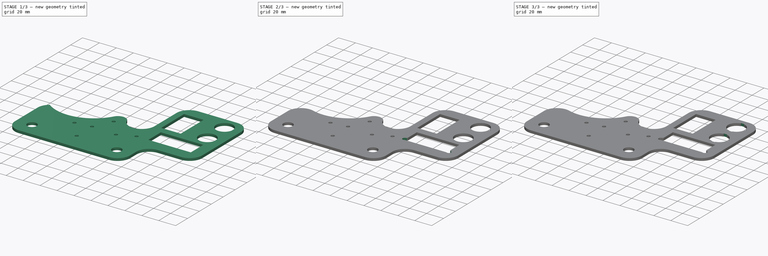
[diagram: build sequence overview — one tinted view per stage of 3, left to right]
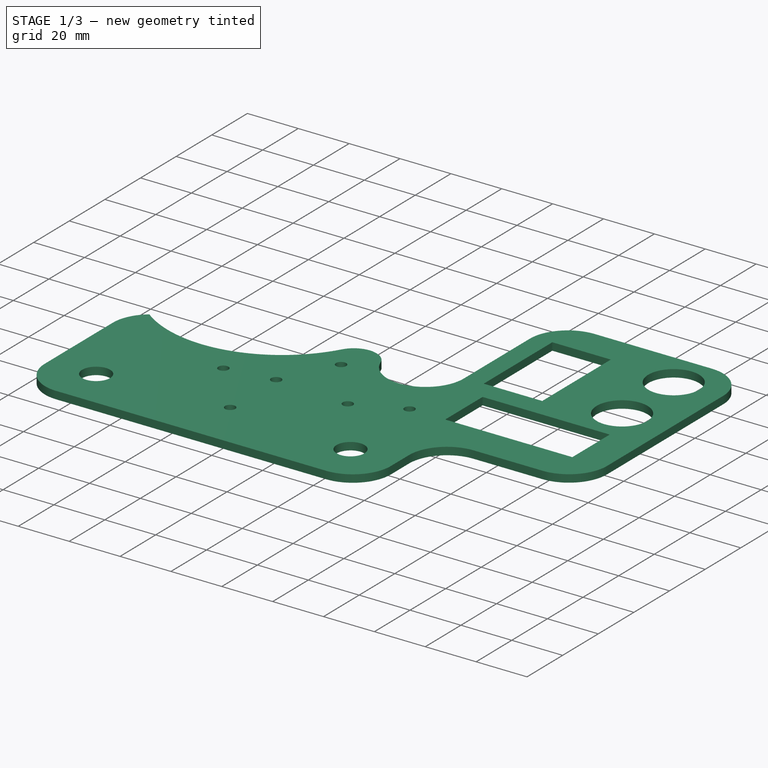
[diagram: stage 1 of 3 — iso view after this stage's code; geometry added in this stage tinted green]
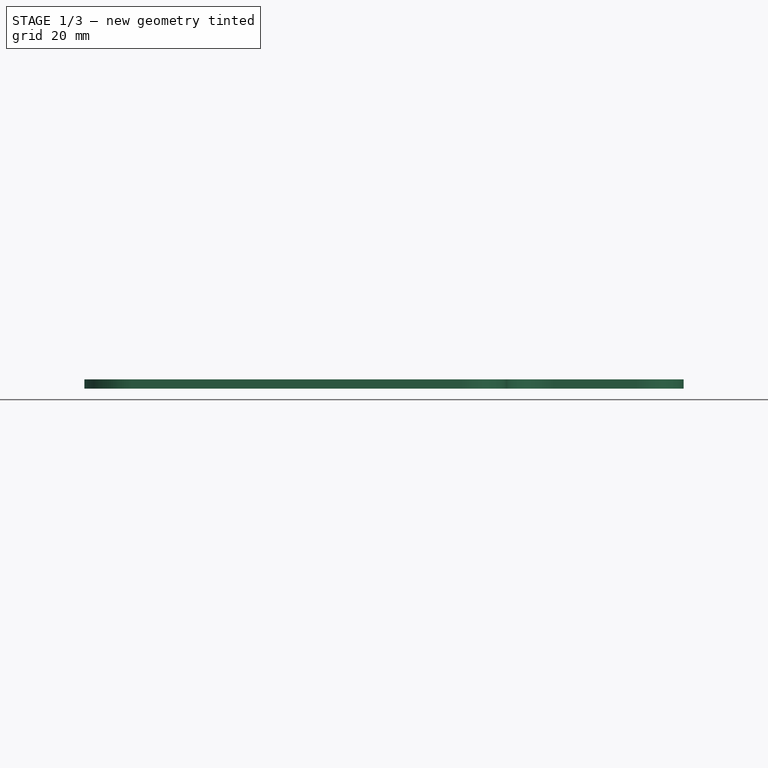
[diagram: stage 1 of 3 — front view after this stage's code; geometry added in this stage tinted green]
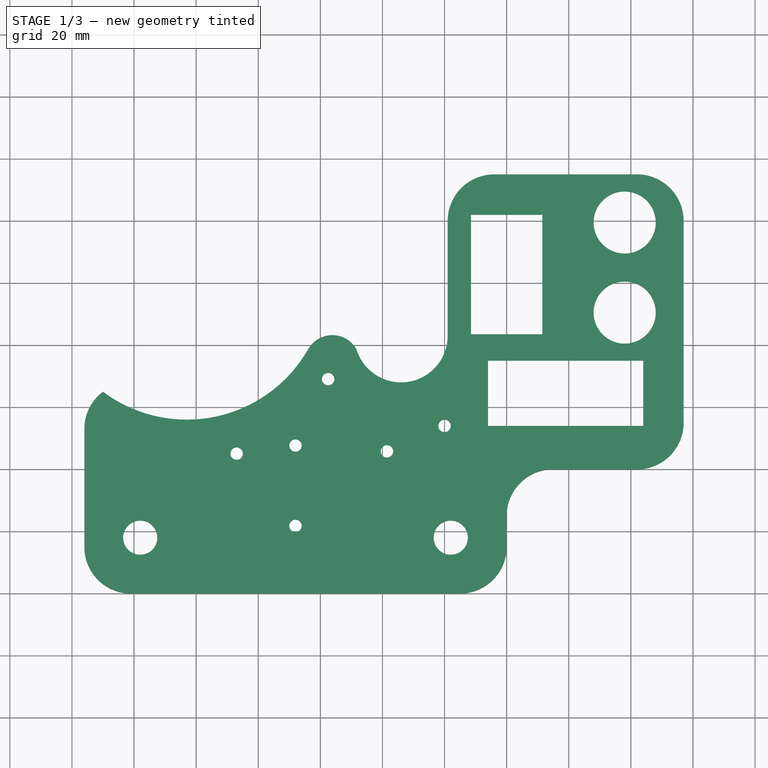
[diagram: stage 1 of 3 — top view after this stage's code; geometry added in this stage tinted green]
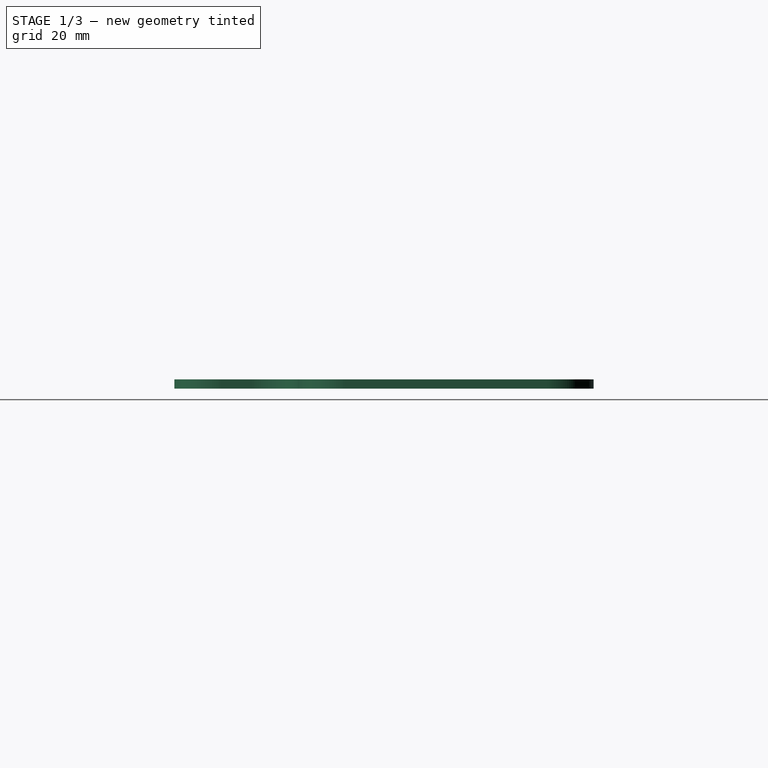
[diagram: stage 1 of 3 — right view after this stage's code; geometry added in this stage tinted green]
FCSTD DOCUMENT  (FreeCAD 1.0R39285 (Git))
Label: dash-bracket
License: All rights reserved
LicenseURL: https://en.wikipedia.org/wiki/All_rights_reserved
objects: PartDesign::Fillet×4, Sketcher::SketchObject×3, PartDesign::Pocket×2, Spreadsheet::Sheet×1, PartDesign::Pad×1, PartDesign::Body×1, TechDraw::DrawSVGTemplate×1, TechDraw::DrawProjGroupItem×1, TechDraw::DrawPage×1
note: 28 computed .brp shape members not serialized (recipe doc carries the construction recipe); baked Part::Feature solids carry a one-line shape summary decoded from their .brp

FEATURE [Sketcher::SketchObject] Sketch
  ArcFitTolerance = 1e-06
  AttachmentSupport = -> [XY_Plane]
  FullyConstrained = true
  MakeInternals = false
  MapMode = 5
  expr: Constraints[10] = <<Spreadsheet>>.speedo_displacement_y
  expr: Constraints[112] = Spreadsheet.amps_dist
  expr: Constraints[115] = <<Spreadsheet>>.bolt_to_amps
  expr: Constraints[119] = 30
  expr: Constraints[124] = <<Spreadsheet>>.bottom_cube_height + 15
  expr: Constraints[125] = <<Spreadsheet>>.top_cube_width - <<Spreadsheet>>.top_cube_x_offset + 15
  expr: Constraints[15] = <<Spreadsheet>>.speedo_displacement_x
  expr: Constraints[16] = <<Spreadsheet>>.bolt_diam
  expr: Constraints[173] = <<Spreadsheet>>.amps_dist
  expr: Constraints[21] = <<Spreadsheet>>.fillet_r
  expr: Constraints[32] = <<Spreadsheet>>.bolt_radius
  expr: Constraints[36] = <<Spreadsheet>>.top_cube_height
  expr: Constraints[37] = <<Spreadsheet>>.top_cube_x_offset
  expr: Constraints[38] = <<Spreadsheet>>.top_cube_y_offset
  expr: Constraints[41] = <<Spreadsheet>>.top_cube_width
  expr: Constraints[42] = <<Spreadsheet>>.bottom_cube_height
  expr: Constraints[5] = <<Spreadsheet>>.bottom_cube_width
  expr: Constraints[6] = <<Spreadsheet>>.speedo_diam
  expr: Constraints[73] = <<Spreadsheet>>.toggle_circle
  expr: Constraints[74] = <<Spreadsheet>>.switches_center_to_center_dist
  expr: Constraints[77] = <<Spreadsheet>>.switches_y_offset
  expr: Constraints[78] = <<Spreadsheet>>.usb_square_x
  expr: Constraints[79] = <<Spreadsheet>>.usb_square_y
  expr: Constraints[80] = <<Spreadsheet>>.indicator_square_x
  expr: Constraints[81] = <<Spreadsheet>>.indicator_square_y
  expr: Constraints[86] = <<Spreadsheet>>.switches_gap_to_right_side
  expr: Constraints[87] = <<Spreadsheet>>.indicator_y_offset
  expr: Constraints[91] = <<Spreadsheet>>.usb_y_offset
  expr: Constraints[92] = <<Spreadsheet>>.usb_x_offset
  expr: Constraints[96] = 4
  expr: Constraints[9] = <<Spreadsheet>>.bolt_dist
  sketch-geometry (71):
    g0: LineSegment StartX=0 StartY=15 StartZ=0 EndX=0 EndY=25 EndZ=0
    g1: LineSegment [constr] StartX=-34 StartY=68 StartZ=0 EndX=-121 EndY=68 EndZ=0
    g2: LineSegment StartX=-136 StartY=53 StartZ=0 EndX=-136 EndY=15 EndZ=0
    g3: LineSegment StartX=-121 StartY=0 StartZ=0 EndX=-15 EndY=0 EndZ=0
    g4: Circle [constr] CenterX=-103 CenterY=101 CenterZ=0 NormalX=0 NormalY=0 NormalZ=1 AngleXU=0 Radius=45
    g5: Circle CenterX=-118 CenterY=18 CenterZ=0 NormalX=0 NormalY=0 NormalZ=1 AngleXU=0 Radius=5.5
    g6: Circle CenterX=-18 CenterY=18 CenterZ=0 NormalX=0 NormalY=0 NormalZ=1 AngleXU=0 Radius=5.5
    g7: GeomPoint [constr] X=-68 Y=18 Z=0
    g8: LineSegment [constr] StartX=-68 StartY=18 StartZ=0 EndX=-68 EndY=0 EndZ=0
    g9: ArcOfCircle [constr] CenterX=-121 CenterY=53 CenterZ=0 NormalX=0 NormalY=0 NormalZ=1 AngleXU=0 Radius=15 StartAngle=1.5708 EndAngle=3.14159
    g10: GeomPoint [constr] X=-136 Y=68 Z=0
    g11: ArcOfCircle CenterX=-121 CenterY=15 CenterZ=0 NormalX=0 NormalY=0 NormalZ=1 AngleXU=0 Radius=15 StartAngle=3.14159 EndAngle=4.71239
    g12: GeomPoint [constr] X=-136 Y=0 Z=0
    g13: ArcOfCircle CenterX=-15 CenterY=15 CenterZ=0 NormalX=0 NormalY=0 NormalZ=1 AngleXU=0 Radius=15 StartAngle=4.71239 EndAngle=6.28319
    g14: GeomPoint [constr] X=0 Y=0 Z=0
    g15: LineSegment StartX=15 StartY=40 StartZ=0 EndX=42 EndY=40 EndZ=0
    g16: LineSegment StartX=57 StartY=55 StartZ=0 EndX=57 EndY=120 EndZ=0
    g17: LineSegment StartX=42 StartY=135 StartZ=0 EndX=-4 EndY=135 EndZ=0
    g18: ArcOfCircle CenterX=15 CenterY=25 CenterZ=0 NormalX=0 NormalY=0 NormalZ=1 AngleXU=0 Radius=15 StartAngle=1.5708 EndAngle=3.14159
    g19: ArcOfCircle CenterX=-4 CenterY=120 CenterZ=0 NormalX=0 NormalY=0 NormalZ=1 AngleXU=0 Radius=15 StartAngle=1.5708 EndAngle=3.14159
    g20: GeomPoint [constr] X=-19 Y=135 Z=0
    g21: ArcOfCircle CenterX=42 CenterY=55 CenterZ=0 NormalX=0 NormalY=0 NormalZ=1 AngleXU=0 Radius=15 StartAngle=4.71239 EndAngle=6.28319
    g22: GeomPoint [constr] X=57 Y=40 Z=0
    g23: ArcOfCircle CenterX=42 CenterY=120 CenterZ=0 NormalX=0 NormalY=0 NormalZ=1 AngleXU=0 Radius=15 StartAngle=0 EndAngle=1.5708
    g24: GeomPoint [constr] X=57 Y=135 Z=0
    g25: LineSegment StartX=-6 StartY=75 StartZ=0 EndX=-6 EndY=54 EndZ=0
    g26: LineSegment StartX=-6 StartY=54 StartZ=0 EndX=44 EndY=54 EndZ=0
    g27: LineSegment StartX=44 StartY=54 StartZ=0 EndX=44 EndY=75 EndZ=0
    g28: LineSegment StartX=44 StartY=75 StartZ=0 EndX=-6 EndY=75 EndZ=0
    g29: LineSegment StartX=-11.5 StartY=122 StartZ=0 EndX=-11.5 EndY=83.5 EndZ=0
    g30: LineSegment StartX=-11.5 StartY=83.5 StartZ=0 EndX=11.5 EndY=83.5 EndZ=0
    g31: LineSegment StartX=11.5 StartY=83.5 StartZ=0 EndX=11.5 EndY=122 EndZ=0
    g32: LineSegment StartX=11.5 StartY=122 StartZ=0 EndX=-11.5 EndY=122 EndZ=0
    g33: Circle CenterX=38 CenterY=119.5 CenterZ=0 NormalX=0 NormalY=0 NormalZ=1 AngleXU=0 Radius=10
    g34: Circle CenterX=38 CenterY=90.5 CenterZ=0 NormalX=0 NormalY=0 NormalZ=1 AngleXU=0 Radius=10
    g35: GeomPoint [constr] X=38 Y=105 Z=0
    g36: LineSegment [constr] StartX=48 StartY=119.5 StartZ=0 EndX=57 EndY=119.5 EndZ=0
    g37: GeomPoint [constr] X=19 Y=135 Z=0
    g38: GeomPoint [constr] X=19 Y=64.5 Z=0
    g39: Circle CenterX=-86.9447 CenterY=45.0777 CenterZ=0 NormalX=0 NormalY=0 NormalZ=1 AngleXU=0 Radius=2
    g40: Circle CenterX=-57.4801 CenterY=69.0743 CenterZ=0 NormalX=0 NormalY=0 NormalZ=1 AngleXU=0 Radius=2
    g41: Circle CenterX=-38.5354 CenterY=45.8128 CenterZ=0 NormalX=0 NormalY=0 NormalZ=1 AngleXU=0 Radius=2
    g42: Circle CenterX=-68 CenterY=21.8162 CenterZ=0 NormalX=0 NormalY=0 NormalZ=1 AngleXU=0 Radius=2
    g43: LineSegment [constr] StartX=-86.9447 StartY=45.0777 StartZ=0 EndX=-68 EndY=21.8162 EndZ=0
    g44: LineSegment [constr] StartX=-57.4801 StartY=69.0743 StartZ=0 EndX=-86.9447 EndY=45.0777 EndZ=0
    g45: LineSegment [constr] StartX=-68 StartY=21.8162 StartZ=0 EndX=-38.5354 EndY=45.8128 EndZ=0
    g46: LineSegment [constr] StartX=-38.5354 StartY=45.8128 StartZ=0 EndX=-57.4801 EndY=69.0743 EndZ=0
    g47: GeomPoint [constr] X=-62.74 Y=45.4453 Z=0
    g48: Circle [constr] CenterX=-92.2074 CenterY=38 CenterZ=0 NormalX=0 NormalY=0 NormalZ=1 AngleXU=0 Radius=2
    g49: Circle [constr] CenterX=-43.7926 CenterY=38 CenterZ=0 NormalX=0 NormalY=0 NormalZ=1 AngleXU=0 Radius=2
    g50: GeomPoint [constr] X=-68 Y=38 Z=0
    g51: ArcOfCircle CenterX=-121 CenterY=53 CenterZ=0 NormalX=0 NormalY=0 NormalZ=1 AngleXU=0 Radius=15 StartAngle=2.2143 EndAngle=3.14159
    g52: Circle [constr] CenterX=-34 CenterY=83 CenterZ=0 NormalX=0 NormalY=0 NormalZ=1 AngleXU=0 Radius=15
    g53: ArcOfCircle CenterX=-103 CenterY=101 CenterZ=0 NormalX=0 NormalY=0 NormalZ=1 AngleXU=0 Radius=45 StartAngle=4.06889 EndAngle=5.76503
    g54: LineSegment StartX=-19 StartY=120 StartZ=0 EndX=-19 EndY=83 EndZ=0
    g55: ArcOfCircle CenterX=-34 CenterY=83 CenterZ=0 NormalX=0 NormalY=0 NormalZ=1 AngleXU=0 Radius=15 StartAngle=3.43146 EndAngle=6.28319
    g56: LineSegment [constr] StartX=-128 StartY=32.2875 StartZ=0 EndX=-128 EndY=3.7125 EndZ=0
    g57: LineSegment [constr] StartX=-128 StartY=3.7125 StartZ=0 EndX=-8 EndY=3.7125 EndZ=0
    g58: LineSegment [constr] StartX=-8 StartY=3.7125 StartZ=0 EndX=-8 EndY=32.2875 EndZ=0
    g59: LineSegment [constr] StartX=-8 StartY=32.2875 StartZ=0 EndX=-128 EndY=32.2875 EndZ=0
    g60: ArcOfCircle CenterX=-56.1406 CenterY=74.2849 CenterZ=0 NormalX=0 NormalY=0 NormalZ=1 AngleXU=0 Radius=8.93983 StartAngle=0.518153 EndAngle=2.62344
    g61: LineSegment [constr] StartX=-53.687 StartY=81.8361 StartZ=0 EndX=-100.21 EndY=43.9467 EndZ=0
    g62: LineSegment [constr] StartX=-100.21 StartY=43.9467 StartZ=0 EndX=-71.7931 EndY=9.05444 EndZ=0
    g63: LineSegment [constr] StartX=-71.7931 StartY=9.05444 StartZ=0 EndX=-25.27 EndY=46.9438 EndZ=0
    g64: GeomPoint [constr] X=-62.74 Y=45.4453 Z=0
    g65: LineSegment [constr] StartX=-73.9515 StartY=65.3323 StartZ=0 EndX=-74.583 EndY=66.1077 EndZ=0
    g66: LineSegment [constr] StartX=-46.4061 StartY=72.8962 StartZ=0 EndX=-45.6308 EndY=73.5277 EndZ=0
    g67: LineSegment [constr] StartX=-53.687 StartY=81.8361 StartZ=0 EndX=-53.378 EndY=82.7872 EndZ=0
    g68: Circle CenterX=-68 CenterY=47.6754 CenterZ=0 NormalX=0 NormalY=0 NormalZ=1 AngleXU=0 Radius=2
    g69: Circle CenterX=-20 CenterY=54 CenterZ=0 NormalX=0 NormalY=0 NormalZ=1 AngleXU=0 Radius=2
    g70: LineSegment [constr] StartX=-53.687 StartY=81.8361 StartZ=0 EndX=-25.27 EndY=46.9438 EndZ=0
  constraints (183):
    c: Vertical(g0)
    c: Vertical(g2)
    c: Horizontal(g1)
    c: Horizontal(g3)
    c: Coincident(g14,g-1)
    c: DistanceX(g12,g14) = 136
    c: Diameter(g4) = 90
    c: Equal(g5,g6)
    c: Horizontal(g5,g6)
    c: DistanceX(g5,g6) = 100
    c: DistanceY(g5,g4) = 83
    c: Symmetric(g5,g6,g7)
    c: Coincident(g8,g7)
    c: Symmetric(g14,g12,g8)
    c: Vertical(g8)
    c: DistanceX(g4,g7) = 35
    c: Diameter(g6) = 11
    c: PointOnObject(g10,g2)
    c: PointOnObject(g10,g1)
    c: Tangent(g2,g9) = -1.5708
    c: Tangent(g1,g9) = -1.5708
    c: Radius(g9) = 15
    c: PointOnObject(g12,g3)
    c: PointOnObject(g12,g2)
    c: Tangent(g3,g11) = -1.5708
    c: Tangent(g2,g11) = -1.5708
    c: PointOnObject(g14,g3)
    c: PointOnObject(g14,g0)
    c: Tangent(g3,g13) = -1.5708
    c: Tangent(g0,g13) = -1.5708
    c: Equal(g13,g11)
    c: Equal(g11,g9)
    c: DistanceY(g8,g8) = 18
    c: Vertical(g16)
    c: Horizontal(g15)
    c: Horizontal(g17)
    c: DistanceY(g22,g24) = 95
    c: DistanceX(g14,g22) = 57
    c: DistanceY(g-1,g22) = 40
    c: Tangent(g15,g18) = 1.5708
    c: Tangent(g0,g18) = 1.5708
    c: DistanceX(g20,g24) = 76
    c: DistanceY(g3,g1) = 68
    c: PointOnObject(g20,g17)
    c: Tangent(g17,g19) = -1.5708
    c: PointOnObject(g22,g16)
    c: PointOnObject(g22,g15)
    c: Tangent(g16,g21) = -1.5708
    c: Tangent(g15,g21) = -1.5708
    c: PointOnObject(g24,g16)
    c: PointOnObject(g24,g17)
    c: Tangent(g16,g23) = -1.5708
    c: Tangent(g17,g23) = -1.5708
    c: Equal(g21,g23)
    c: Equal(g23,g19)
    c: Equal(g19,g9)
    c: Coincident(g25,g26)
    c: Coincident(g26,g27)
    c: Coincident(g27,g28)
    c: Coincident(g28,g25)
    c: Vertical(g25)
    c: Vertical(g27)
    c: Horizontal(g26)
    c: Horizontal(g28)
    c: Coincident(g29,g30)
    c: Coincident(g30,g31)
    c: Coincident(g31,g32)
    c: Coincident(g32,g29)
    c: Vertical(g29)
    c: Vertical(g31)
    c: Horizontal(g30)
    c: Horizontal(g32)
    c: Equal(g34,g33)
    c: Diameter(g33) = 20
    c: DistanceY(g34,g33) = 29
    c: Vertical(g33,g34)
    c: Symmetric(g33,g34,g35)
    c: Distance(g35,g28) = 30
    c: DistanceX(g30,g30) = 23
    c: DistanceY(g31,g31) = 38.5
    c: DistanceX(g26,g26) = 50
    c: DistanceY(g25,g25) = 21
    c: PointOnObject(g36,g33)
    c: PointOnObject(g36,g16)
    c: Horizontal(g36)
    c: Perpendicular(g33,g36)
    c: DistanceX(g36,g36) = 9
    c: Distance(g15,g26) = 14
    c: Symmetric(g17,g17,g37)
    c: Symmetric(g25,g26,g38)
    c: Vertical(g38,g37)
    c: Distance(g28,g30) = 8.5
    c: Distance(g19,g29) = 7.5
    c: Equal(g42,g41)
    c: Equal(g41,g40)
    c: Equal(g40,g39)
    c: Diameter(g42) = 4
    c: Coincident(g43,g39)
    c: Coincident(g43,g42)
    c: Coincident(g44,g39)
    c: Perpendicular(g43,g44)
    c: Distance(g44,g44) = 38
    c: Distance(g43,g43) = 30
    c: Coincident(g45,g42)
    c: Coincident(g45,g41)
    c: Parallel(g44,g45)
    c: Coincident(g46,g41)
    c: Perpendicular(g46,g44)
    c: Symmetric(g42,g40,g47)
    c: Equal(g49,g48)
    c: Equal(g48,g39)
    c: Horizontal(g49,g48)
    c: DistanceX(g48,g49) = 48.4149
    c: Symmetric(g48,g49,g50)
    c: Vertical(g50,g7)
    c: DistanceY(g5,g48) = 20
    c: Coincident(g51,g9)
    c: Coincident(g51,g2)
    c: PointOnObject(g51,g4)
    c: Diameter(g52) = 30
    c: Coincident(g53,g4)
    c: Coincident(g53,g51)
    c: Vertical(g19,g20)
    c: Horizontal(g19,g19)
    c: DistanceY(g14,g52) = 83
    c: DistanceX(g52,g14) = 34
    c: Coincident(g54,g19)
    c: PointOnObject(g54,g52)
    c: Vertical(g54)
    c: Coincident(g55,g52)
    c: Coincident(g55,g54)
    c: Coincident(g56,g57)
    c: Coincident(g57,g58)
    c: Coincident(g58,g59)
    c: Coincident(g59,g56)
    c: Vertical(g56)
    c: Vertical(g58)
    c: Horizontal(g57)
    c: Horizontal(g59)
    c: DistanceY(g56,g56) = 28.575
    c: DistanceX(g59,g59) = 120
    c: Symmetric(g56,g57,g7)
    c: Equal(g18,g51)
    c: Horizontal(g53,g55)
    c: Tangent(g60,g53) = 1.5708
    c: Coincident(g44,g46)
    c: Coincident(g44,g40)
    c: PointOnObject(g1,g55)
    c: Coincident(g60,g55)
    c: Coincident(g61,g62)
    c: Coincident(g62,g63)
    c: Perpendicular(g62,g61)
    c: Perpendicular(g63,g62)
    c: Symmetric(g61,g63,g64)
    c: Coincident(g64,g47)
    c: Parallel(g63,g45)
    c: Distance(g63,g63) = 60
    c: Distance(g63,g61) = 45
    c: PointOnObject(g65,g61)
    c: PointOnObject(g65,g53)
    c: Perpendicular(g53,g65)
    c: Perpendicular(g61,g65)
    c: Distance(g65,g65) = 1
    c: PointOnObject(g66,g55)
    c: Perpendicular(g55,g66)
    c: Equal(g66,g65)
    c: Vertical(g42,g7)
    c: Coincident(g67,g61)
    c: PointOnObject(g67,g60)
    c: Perpendicular(g60,g67)
    c: Equal(g65,g67)
    c: Equal(g68,g48)
    c: Vertical(g68,g8)
    c: Distance(g68,g69) = 48.4149
    c: Equal(g68,g69)
    c: DistanceX(g69,g25) = 14
    c: Horizontal(g69,g25)
    c: PointOnObject(g63,g70)
    c: Coincident(g70,g61)
    c: PointOnObject(g66,g70)
    c: Perpendicular(g70,g66)
    c: PointOnObject(g70,g63)
    c: Equal(g61,g63)
FEATURE [Spreadsheet::Sheet] Spreadsheet
  cells = A1='bolt_dist; B1(bolt_dist)=100; A2='amps_dist; B2(amps_dist)==sqrt(30 ^ 2 + 38 ^ 2); A3='bolt_to_amps; B3(bolt_to_amps)=20; A4='bolt_radius; B4(bolt_radius)=18; A5='bolt_diam; B5(bolt_diam)=11; A6='amps_diam; B6(amps_diam)=6.5; A7='indicator_square_x; B7(indicator_square_x)=50; C7(indicator_square_y)=21; A8='usb_square; B8(usb_square_x)=23; C8(usb_square_y)=38.5; A9='toggle_circle; B9(toggle_circle)=20; A10='thickness; B10(thickness)=3; A11='speedo_diam; B11(speedo_diam)=90; A12='speedo_displacement; B12(speedo_displacement_x)=35; C12(speedo_displacement_y)=83; A13='bottom_cube_size; B13(bottom_cube_width)==bolt_dist + bolt_radius * 2; C13(bottom_cube_height)=68; A14='fillet_r; B14(fillet_r)=15; A15='top_cube_size; B15(top_cube_width)=76; C15(top_cube_height)=95; A16='top_cube_offset; B16(top_cube_x_offset)=57; C16(top_cube_y_offset)=40; A17='indicator_y_offset; B17(indicator_y_offset)=14; A18='usb_offset; B18(usb_x_offset)=7.5; C18(usb_y_offset)=8.5; A19='switches_y_offset; B19(switches_y_offset)=30; A20='switches_gap_to_right_side; B20(switches_gap_to_right_side)=9; A21='switches_center_to_center_dist; B21(switches_center_to_center_dist)=29; A22='indicator_screw_x_dist; B22(indicator_screw_x_dist)=52; A23='switch_notch_d; B23(switch_notch_d)=2.5; A24='indicator_screw_y_offset; B24(indicator_screw_y_offset)=2; A25='indicator_screw_diam; B25(indicator_screw_diam)=5
FEATURE [PartDesign::Pad] Pad
  Direction = (0,0,1)
  Length = 3
  Length2 = 10
  Profile = -> Sketch
  ReferenceAxis = -> Sketch [N_Axis]
  Refine = true
  Suppressed = false
  Type = 0
  expr: Length = <<Spreadsheet>>.thickness
FEATURE [PartDesign::Fillet] Fillet
  Base = -> Pad [Edge44]
  BaseFeature = -> Pad
  Radius = 5
  Refine = true
  SupportTransform = false
  Suppressed = false
  UseAllEdges = false
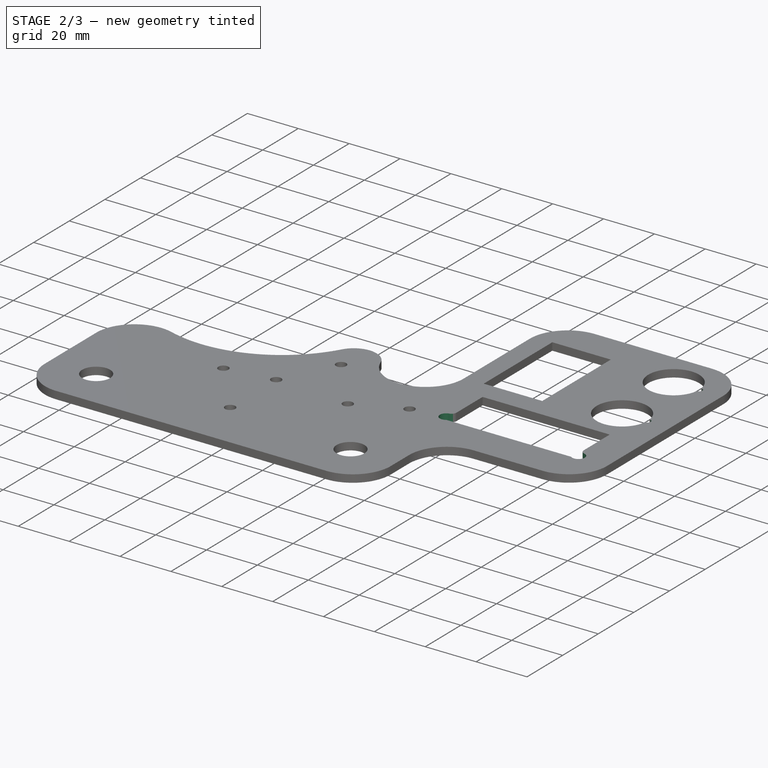
[diagram: stage 2 of 3 — iso view after this stage's code; geometry added in this stage tinted green]
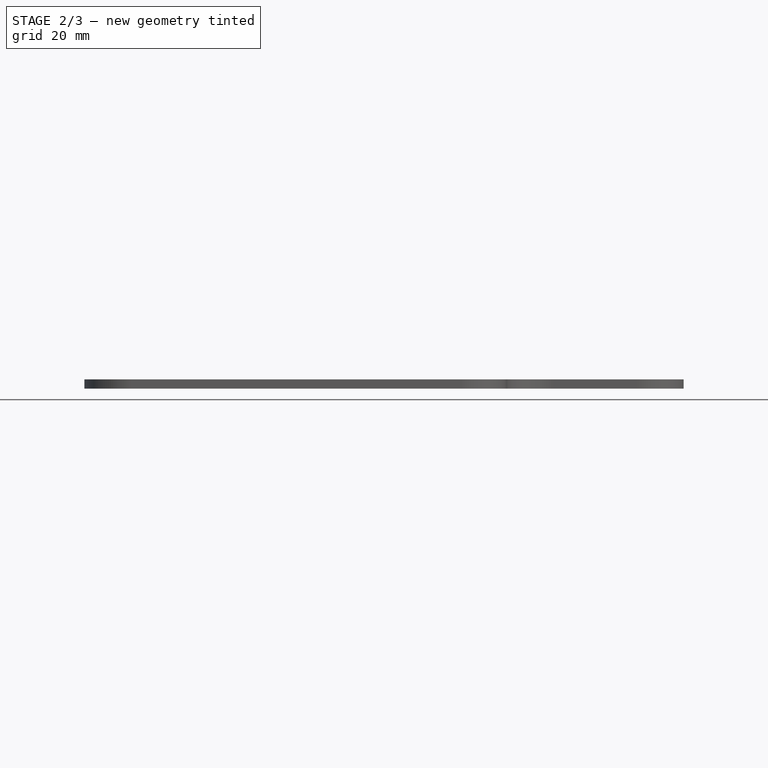
[diagram: stage 2 of 3 — front view after this stage's code; geometry added in this stage tinted green]
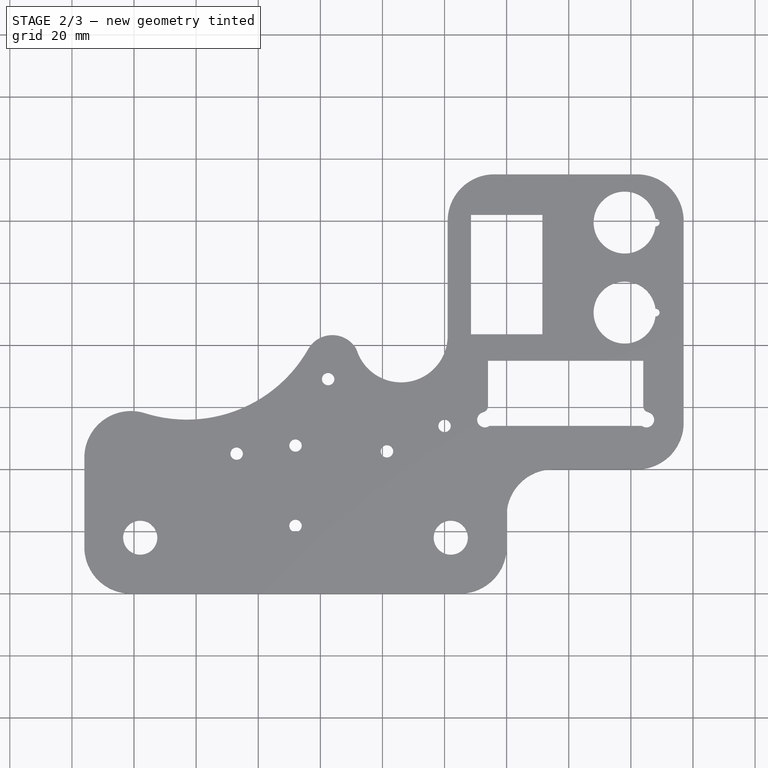
[diagram: stage 2 of 3 — top view after this stage's code; geometry added in this stage tinted green]
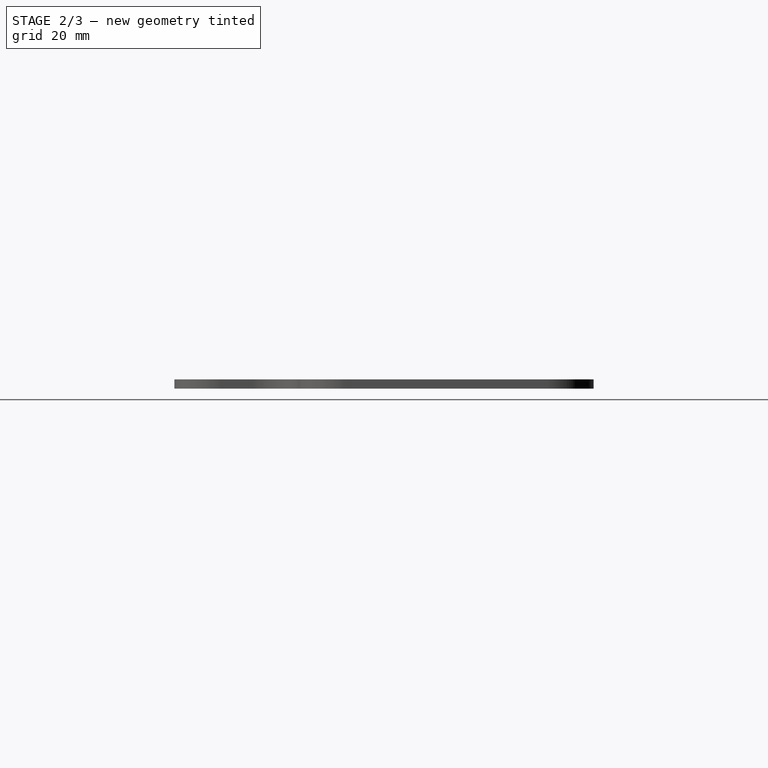
[diagram: stage 2 of 3 — right view after this stage's code; geometry added in this stage tinted green]
FEATURE [PartDesign::Fillet] Fillet001
  Base = -> Fillet [Edge79]
  BaseFeature = -> Fillet
  Radius = 15
  Refine = true
  SupportTransform = false
  Suppressed = false
  UseAllEdges = false
FEATURE [Sketcher::SketchObject] Sketch001
  ArcFitTolerance = 1e-06
  AttachmentSupport = -> [Fillet001]
  ExternalGeometry = -> [Fillet001]
  FullyConstrained = true
  MakeInternals = false
  MapMode = 5
  Placement = pos=(0,0,3) rot=(0,0,1;0rad)
  expr: Constraints[11] = <<Spreadsheet>>.indicator_screw_diam
  expr: Constraints[13] = <<Spreadsheet>>.indicator_screw_x_dist
  expr: Constraints[17] = <<Spreadsheet>>.indicator_screw_y_offset
  expr: Constraints[1] = <<Spreadsheet>>.switch_notch_d
  sketch-geometry (7):
    g0: Circle CenterX=48 CenterY=119.5 CenterZ=0 NormalX=0 NormalY=0 NormalZ=1 AngleXU=0 Radius=1.25
    g1: Circle CenterX=48 CenterY=90.5 CenterZ=0 NormalX=0 NormalY=0 NormalZ=1 AngleXU=0 Radius=1.25
    g2: LineSegment [constr] StartX=38 StartY=119.5 StartZ=0 EndX=48 EndY=119.5 EndZ=0
    g3: LineSegment [constr] StartX=38 StartY=90.5 StartZ=0 EndX=48 EndY=90.5 EndZ=0
    g4: Circle CenterX=-7 CenterY=56 CenterZ=0 NormalX=0 NormalY=0 NormalZ=1 AngleXU=0 Radius=2.5
    g5: Circle CenterX=45 CenterY=56 CenterZ=0 NormalX=0 NormalY=0 NormalZ=1 AngleXU=0 Radius=2.5
    g6: LineSegment [constr] StartX=19 StartY=54 StartZ=0 EndX=19 EndY=56 EndZ=0
  constraints (18):
    c: Equal(g1,g0)
    c: Diameter(g0) = 2.5
    c: Coincident(g2,g-4)
    c: PointOnObject(g2,g-4)
    c: Horizontal(g2)
    c: Coincident(g3,g-3)
    c: PointOnObject(g3,g-3)
    c: Horizontal(g3)
    c: Coincident(g1,g3)
    c: Coincident(g0,g2)
    c: Equal(g5,g4)
    c: Diameter(g4) = 5
    c: Horizontal(g4,g5)
    c: DistanceX(g4,g5) = 52
    c: Symmetric(g4,g5,g6)
    c: Symmetric(g-5,g-5,g6)
    c: Vertical(g6)
    c: DistanceY(g-5,g4) = 2
FEATURE [PartDesign::Pocket] Pocket
  BaseFeature = -> Fillet001
  Direction = (0,0,-1)
  Length = 5
  Length2 = 5
  Profile = -> Sketch001
  ReferenceAxis = -> Sketch001 [N_Axis]
  Refine = true
  Suppressed = false
  Type = 1
FEATURE [PartDesign::Fillet] Fillet002
  Base = -> Pocket [Edge105,Edge96]
  BaseFeature = -> Pocket
  Radius = 2
  Refine = true
  SupportTransform = false
  Suppressed = false
  UseAllEdges = false
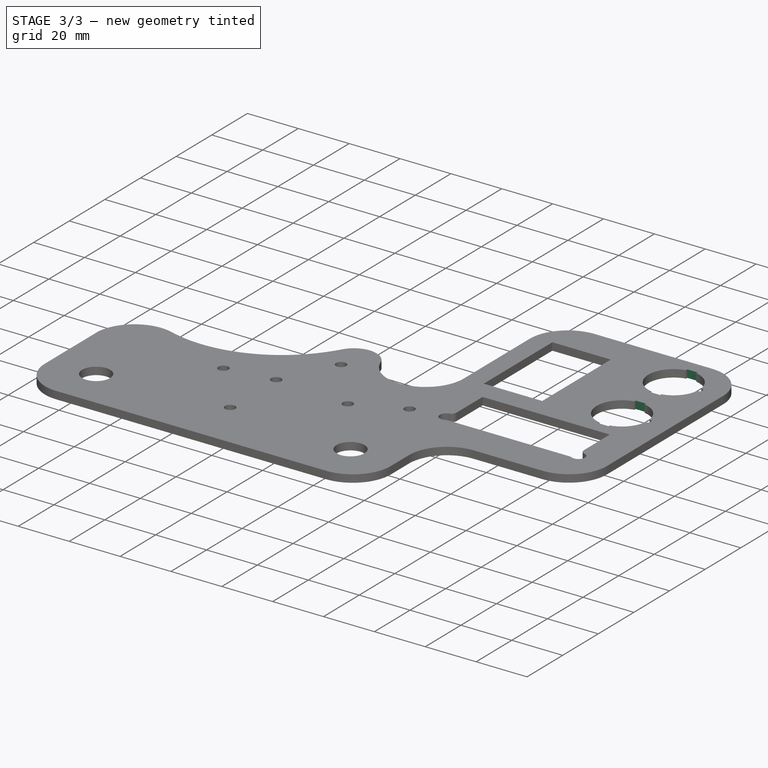
[diagram: stage 3 of 3 — iso view after this stage's code; geometry added in this stage tinted green]
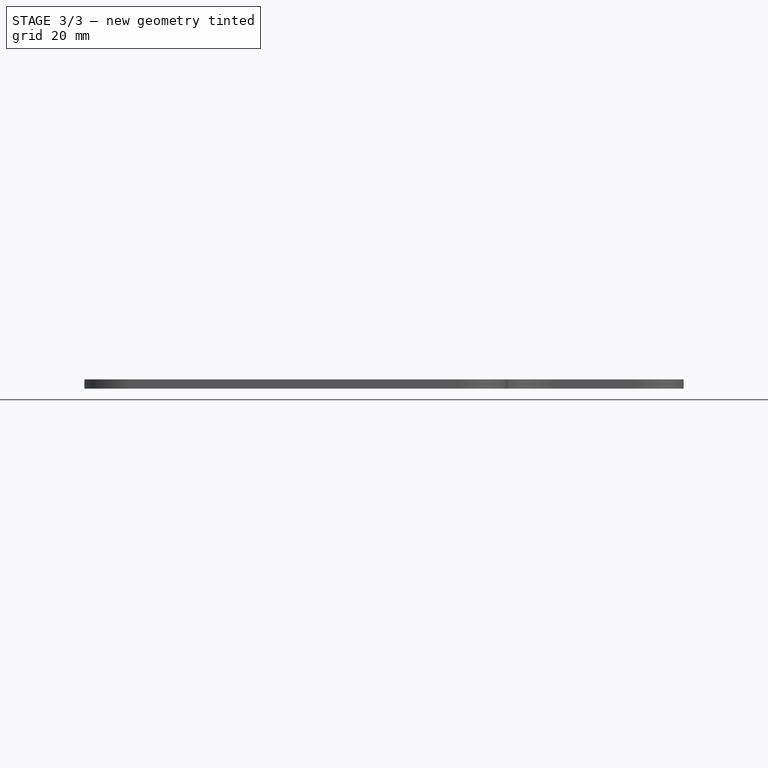
[diagram: stage 3 of 3 — front view after this stage's code; geometry added in this stage tinted green]
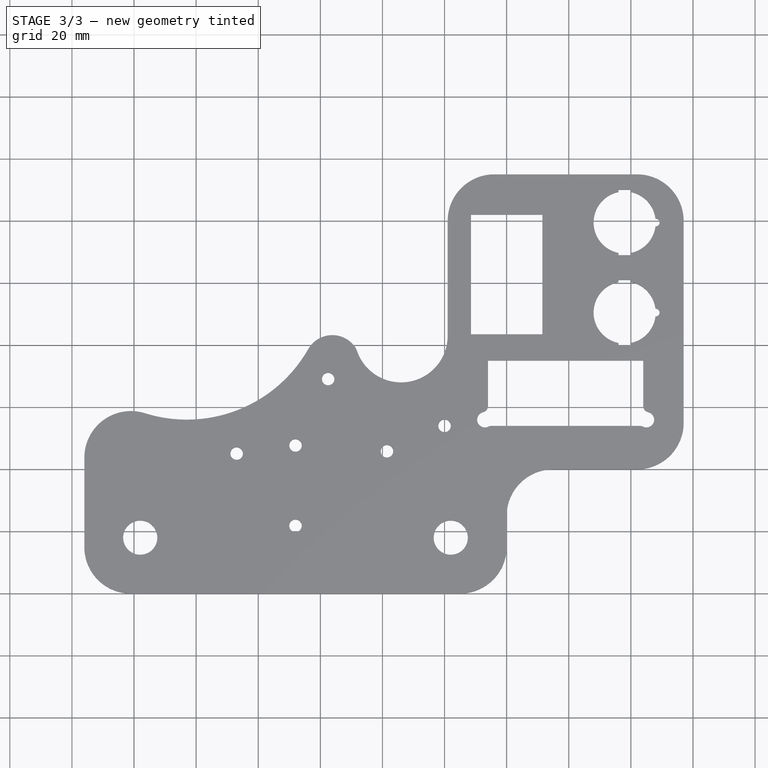
[diagram: stage 3 of 3 — top view after this stage's code; geometry added in this stage tinted green]
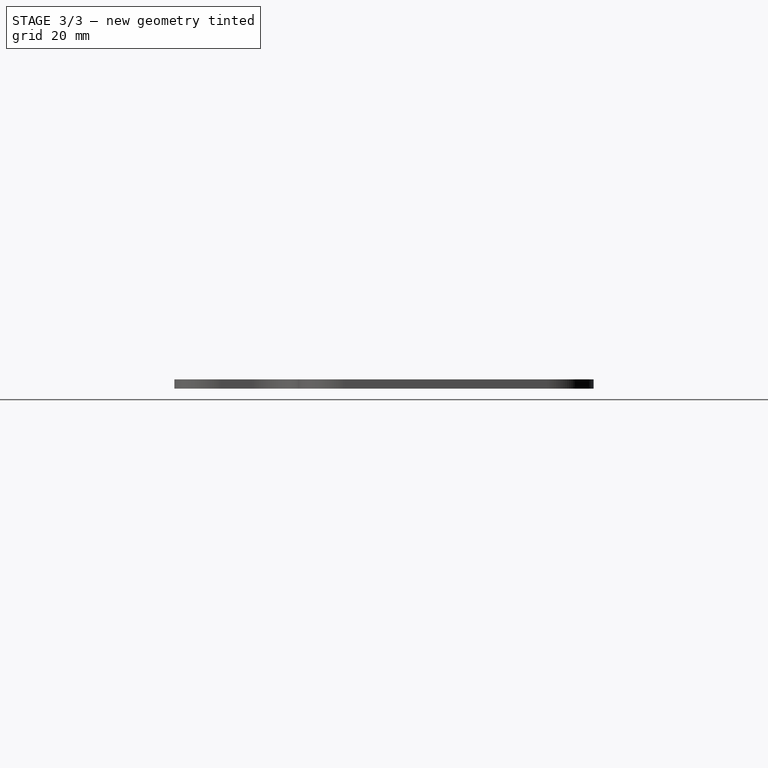
[diagram: stage 3 of 3 — right view after this stage's code; geometry added in this stage tinted green]
FEATURE [PartDesign::Fillet] Fillet003
  Base = -> Fillet002 [Edge54,Edge57]
  BaseFeature = -> Fillet002
  Radius = 2
  Refine = true
  SupportTransform = false
  Suppressed = false
  UseAllEdges = false
FEATURE [Sketcher::SketchObject] Sketch002
  ArcFitTolerance = 1e-06
  AttachmentSupport = -> [Fillet003]
  ExternalGeometry = -> [Fillet003]
  FullyConstrained = true
  MakeInternals = false
  MapMode = 5
  Placement = pos=(0,0,3) rot=(0,0,1;0rad)
  sketch-geometry (8):
    g0: LineSegment StartX=36 StartY=130 StartZ=0 EndX=36 EndY=109 EndZ=0
    g1: LineSegment StartX=36 StartY=109 StartZ=0 EndX=40 EndY=109 EndZ=0
    g2: LineSegment StartX=40 StartY=109 StartZ=0 EndX=40 EndY=130 EndZ=0
    g3: LineSegment StartX=40 StartY=130 StartZ=0 EndX=36 EndY=130 EndZ=0
    g4: LineSegment StartX=36 StartY=101 StartZ=0 EndX=36 EndY=80 EndZ=0
    g5: LineSegment StartX=36 StartY=80 StartZ=0 EndX=40 EndY=80 EndZ=0
    g6: LineSegment StartX=40 StartY=80 StartZ=0 EndX=40 EndY=101 EndZ=0
    g7: LineSegment StartX=40 StartY=101 StartZ=0 EndX=36 EndY=101 EndZ=0
  constraints (22):
    c: Coincident(g0,g1)
    c: Coincident(g1,g2)
    c: Coincident(g2,g3)
    c: Coincident(g3,g0)
    c: Vertical(g0)
    c: Vertical(g2)
    c: Horizontal(g1)
    c: Horizontal(g3)
    c: Coincident(g4,g5)
    c: Coincident(g5,g6)
    c: Coincident(g6,g7)
    c: Coincident(g7,g4)
    c: Vertical(g4)
    c: Vertical(g6)
    c: Horizontal(g5)
    c: Horizontal(g7)
    c: Equal(g2,g6)
    c: Equal(g3,g7)
    c: Symmetric(g2,g0,g-3)
    c: Symmetric(g4,g6,g-4)
    c: DistanceY(g2,g2) = 21
    c: DistanceX(g1,g1) = 4
FEATURE [PartDesign::Pocket] Pocket001
  BaseFeature = -> Fillet003
  Direction = (0,0,-1)
  Length = 5
  Length2 = 5
  Profile = -> Sketch002
  ReferenceAxis = -> Sketch002 [N_Axis]
  Refine = true
  Suppressed = false
  Type = 1
FEATURE [PartDesign::Body] Body
  AllowCompound = false
  Group = -> [Sketch,Pad,Fillet,Fillet001,Sketch001,Pocket,Fillet002,Fillet003,Sketch002,Pocket001]
  Origin = -> Origin
  Tip = -> Pocket001
FEATURE [TechDraw::DrawSVGTemplate] Template
  Height = 210
  Orientation = 1
  Template = /app/share/Mod/TechDraw/Templates/Default_Template_A4_Landscape.svg
  Width = 297
FEATURE [TechDraw::DrawProjGroupItem] View
  CoarseView = false
  Direction = (0,0,1)
  Focus = 100
  HardHidden = false
  IsoCount = 0
  IsoHidden = false
  IsoVisible = false
  LockPosition = false
  Perspective = false
  Rotation = 0
  RotationVector = (1,0,0)
  ScaleType = 0
  ScrubCount = 1
  SeamHidden = false
  SeamVisible = false
  SmoothHidden = false
  SmoothVisible = true
  Source = -> [Body]
  Type = 0
  X = 148.5
  XDirection = (1,0,0)
  Y = 105
FEATURE [TechDraw::DrawPage] Page
  KeepUpdated = true
  NextBalloonIndex = 1
  ProjectionType = 0
  Template = -> Template
  Views = -> [View]
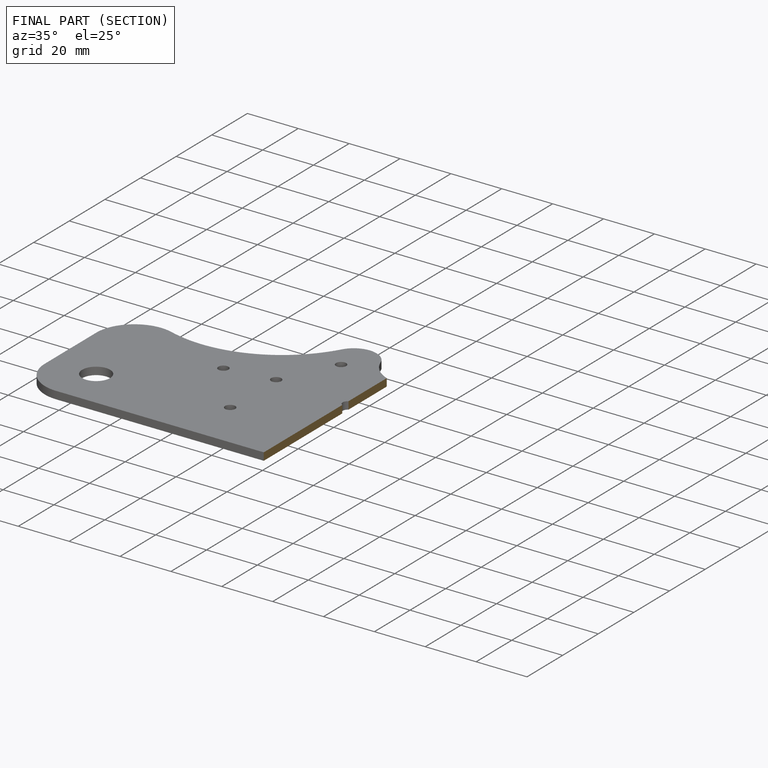
[diagram: finished part — half-section view (interior)]
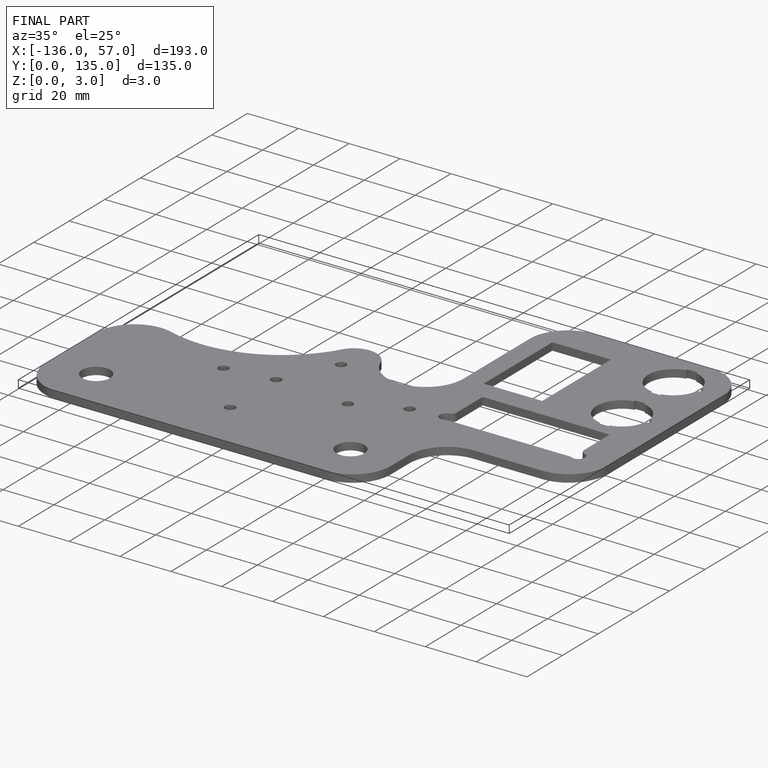
[diagram: finished part — iso view with bounding-box wireframe]
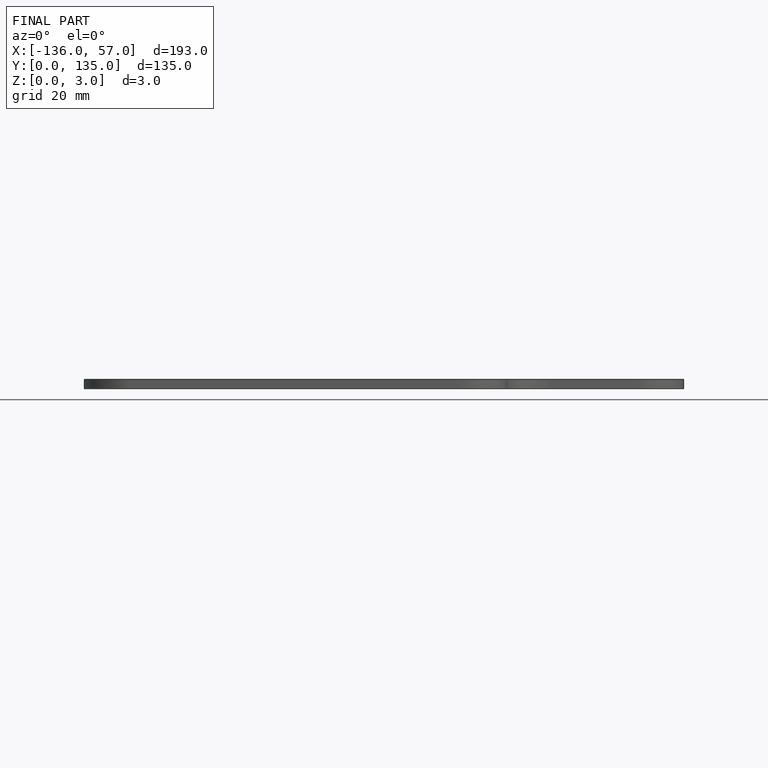
[diagram: finished part — front view with bounding-box wireframe]
